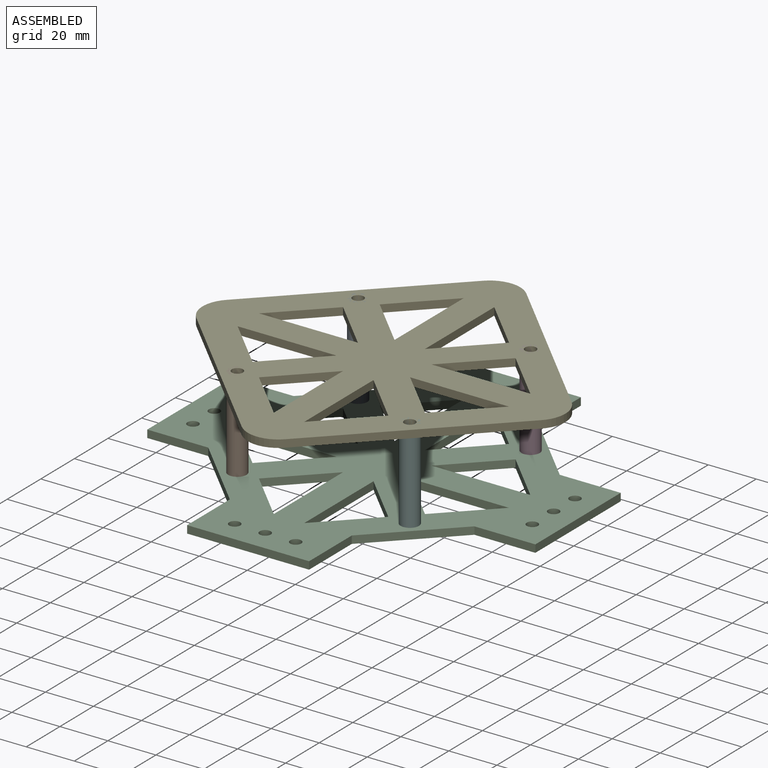
[diagram: assembled view]
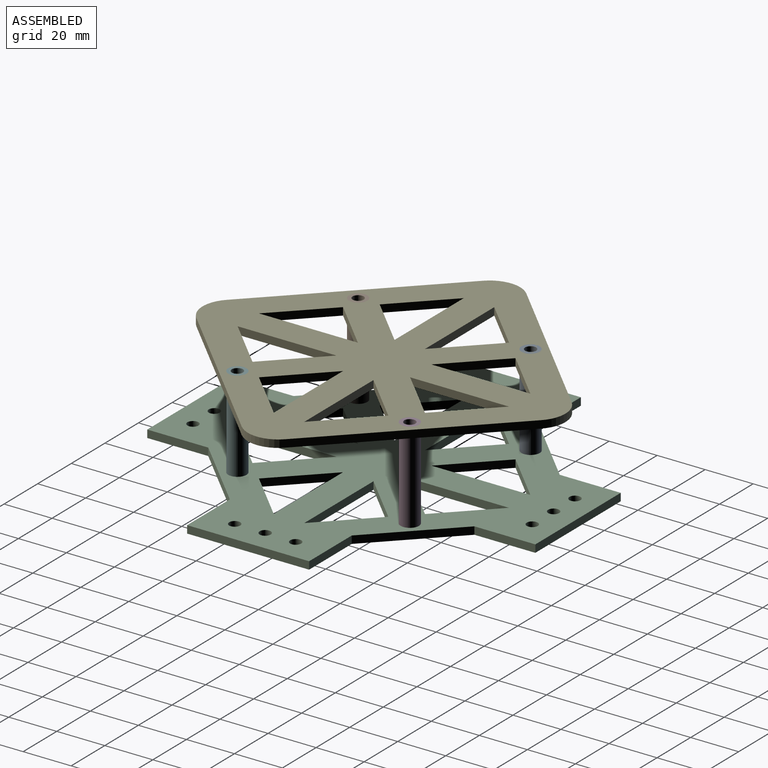
[diagram: assembled view, second angle]
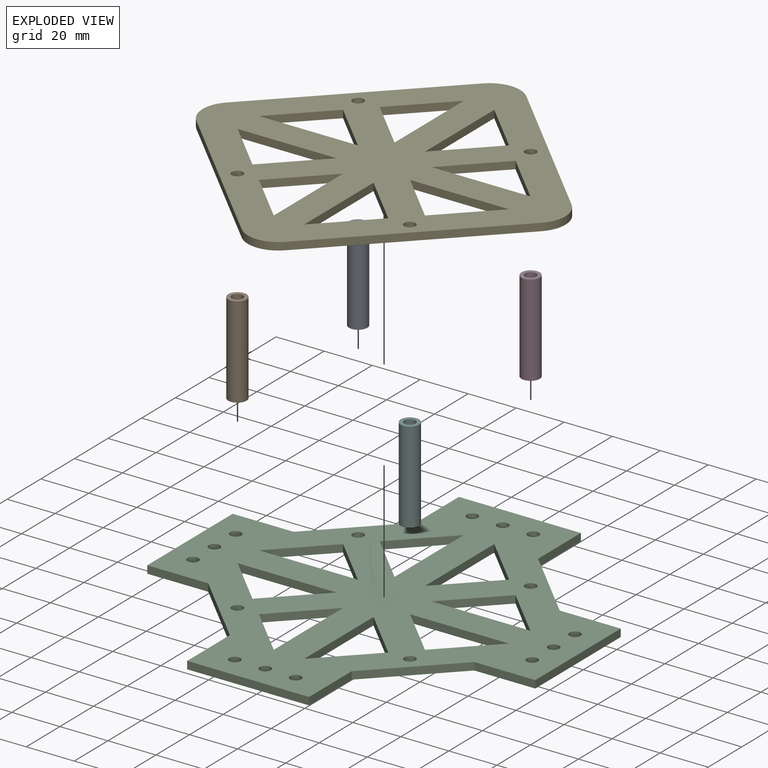
[diagram: exploded view]
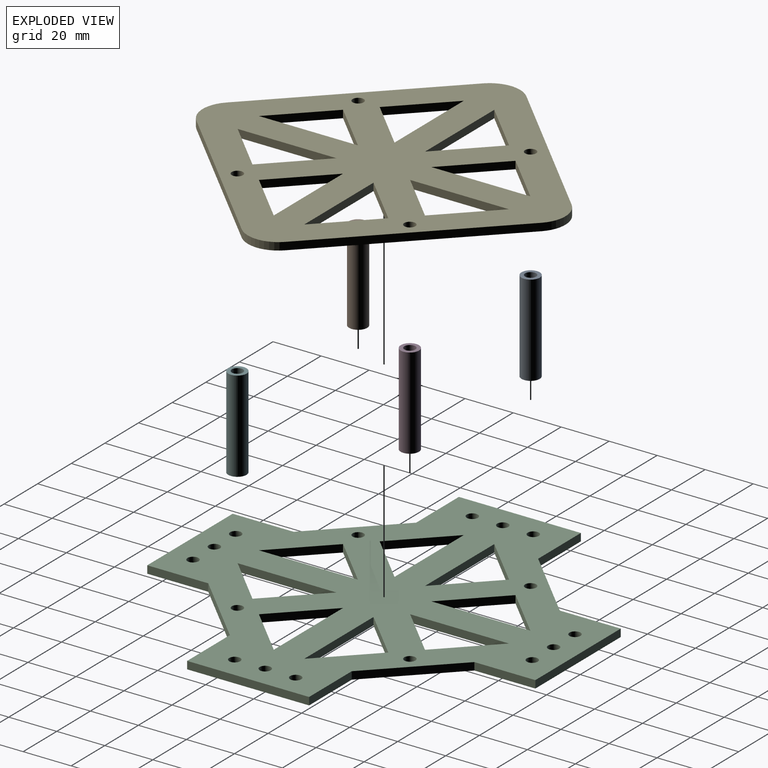
[diagram: exploded view, second angle]
ASSEMBLY  parts=6 mates=5
PART A: 4 faces, bbox 7.6x7.6x38.1 mm
  f0: cylinder r=3.81mm len=38.1mm, axis (0,0,-1), area 912.1mm2, adj f1,f2
  f1: plane 7.62x7.62mm, normal (0,0,1), area 28.8mm2, adj f0,f3
  f2: plane 7.62x7.62mm, normal (0,0,-1), area 28.8mm2, adj f0,f3
  f3: cylinder r=2.31mm len=38.1mm, axis (0,0,1), area 553.3mm2, adj f1,f2
PART B: same geometry as A
PART C: 58 faces, bbox 150.2x150.2x3.2 mm
  f0: plane 29.12x3.18mm, normal (0,-1,0), area 92.5mm2, adj f1,f55,f56,f57
  f1: plane 29.12x3.18mm, normal (-1,0,0), area 92.5mm2, adj f0,f55,f56,f57
  f2: plane 29.12x3.18mm, normal (0,-1,0), area 92.5mm2, adj f3,f31,f56,f57
  f3: plane 29.12x3.18mm, normal (-1,0,0), area 92.5mm2, adj f2,f31,f56,f57
  f4: plane 17.96x17.96mm, normal (-0.71,-0.71,0), area 80.6mm2, adj f5,f32,f56,f57
  f5: plane 42.46x3.18mm, normal (-1,0,0), area 134.8mm2, adj f4,f6,f56,f57
  f6: plane 17.96x17.96mm, normal (-0.71,0.71,0), area 80.6mm2, adj f5,f7,f56,f57
  f7: plane 35.92x35.92mm, normal (-0.71,-0.71,0), area 161.3mm2, adj f6,f8,f56,f57
  f8: plane 17.96x17.96mm, normal (0.71,-0.71,0), area 80.6mm2, adj f7,f9,f56,f57
  f9: plane 42.46x3.18mm, normal (0,-1,0), area 134.8mm2, adj f8,f10,f56,f57
  f10: plane 17.96x17.96mm, normal (-0.71,-0.71,0), area 80.6mm2, adj f9,f11,f56,f57
  f11: plane 35.92x35.92mm, normal (0.71,-0.71,0), area 161.3mm2, adj f10,f12,f56,f57
  f12: plane 17.96x17.96mm, normal (0.71,0.71,0), area 80.6mm2, adj f11,f13,f56,f57
  f13: plane 42.46x3.18mm, normal (1,0,0), area 134.8mm2, adj f12,f14,f56,f57
  f14: plane 17.96x17.96mm, normal (0.71,-0.71,0), area 80.6mm2, adj f13,f15,f56,f57
  f15: plane 35.92x35.92mm, normal (0.71,0.71,0), area 161.3mm2, adj f14,f16,f56,f57
  f16: plane 17.96x17.96mm, normal (-0.71,0.71,0), area 80.6mm2, adj f15,f17,f56,f57
  f17: plane 42.46x3.18mm, normal (0,1,0), area 134.8mm2, adj f16,f18,f56,f57
  f18: plane 17.96x17.96mm, normal (0.71,0.71,0), area 80.6mm2, adj f17,f32,f56,f57
  f19: plane 29.12x3.18mm, normal (-1,0,0), area 92.5mm2, adj f20,f49,f56,f57
  f20: plane 29.12x3.18mm, normal (0,1,0), area 92.5mm2, adj f19,f49,f56,f57
  f21: plane 29.12x29.12mm, normal (-0.71,0.71,0), area 130.8mm2, adj f22,f50,f56,f57
  f22: plane 29.12x3.18mm, normal (1,0,0), area 92.5mm2, adj f21,f50,f56,f57
  f23: plane 29.12x29.12mm, normal (-0.71,-0.71,0), area 130.8mm2, adj f24,f51,f56,f57
  f24: plane 29.12x3.18mm, normal (0,1,0), area 92.5mm2, adj f23,f51,f56,f57
  f25: plane 29.12x3.18mm, normal (-1,0,0), area 92.5mm2, adj f26,f52,f56,f57
  f26: plane 29.12x3.18mm, normal (0,1,0), area 92.5mm2, adj f25,f52,f56,f57
  f27: plane 29.12x3.18mm, normal (1,0,0), area 92.5mm2, adj f28,f53,f56,f57
  f28: plane 29.12x3.18mm, normal (0,-1,0), area 92.5mm2, adj f27,f53,f56,f57
  f29: plane 29.12x3.18mm, normal (0,1,0), area 92.5mm2, adj f30,f54,f56,f57
  f30: plane 29.12x3.18mm, normal (1,0,0), area 92.5mm2, adj f29,f54,f56,f57
  f31: plane 29.12x29.12mm, normal (0.71,0.71,0), area 130.8mm2, adj f2,f3,f56,f57
  f32: plane 35.92x35.92mm, normal (-0.71,0.71,0), area 161.3mm2, adj f4,f18,f56,f57
  f33: cylinder r=2.31mm len=4.62mm, axis (0,0,-1), area 46.1mm2, adj f56,f57
  f34: cylinder r=2.31mm len=4.62mm, axis (0,0,-1), area 46.1mm2, adj f56,f57
  f35: cylinder r=2.31mm len=4.62mm, axis (0,0,-1), area 46.1mm2, adj f56,f57
  f36: cylinder r=2.31mm len=4.62mm, axis (0,0,-1), area 46.1mm2, adj f56,f57
  f37: cylinder r=2.31mm len=4.62mm, axis (0,0,-1), area 46.1mm2, adj f56,f57
  f38: cylinder r=2.31mm len=4.62mm, axis (0,0,-1), area 46.1mm2, adj f56,f57
  f39: cylinder r=2.31mm len=4.62mm, axis (0,0,-1), area 46.1mm2, adj f56,f57
  f40: cylinder r=2.31mm len=4.62mm, axis (0,0,-1), area 46.1mm2, adj f56,f57
  f41: cylinder r=2.31mm len=4.62mm, axis (0,0,-1), area 46.1mm2, adj f56,f57
  f42: cylinder r=2.31mm len=4.62mm, axis (0,0,-1), area 46.1mm2, adj f56,f57
  f43: cylinder r=2.31mm len=4.62mm, axis (0,0,-1), area 46.1mm2, adj f56,f57
  f44: cylinder r=2.31mm len=4.62mm, axis (0,0,-1), area 46.1mm2, adj f56,f57
  f45: cylinder r=2.31mm len=4.62mm, axis (0,0,-1), area 46.1mm2, adj f56,f57
  f46: cylinder r=2.31mm len=4.62mm, axis (0,0,-1), area 46.1mm2, adj f56,f57
  f47: cylinder r=2.31mm len=4.62mm, axis (0,0,-1), area 46.1mm2, adj f56,f57
  f48: cylinder r=2.31mm len=4.62mm, axis (0,0,-1), area 46.1mm2, adj f56,f57
  f49: plane 29.12x29.12mm, normal (0.71,-0.71,0), area 130.8mm2, adj f19,f20,f56,f57
  f50: plane 29.12x3.18mm, normal (0,-1,0), area 92.5mm2, adj f21,f22,f56,f57
  f51: plane 29.12x3.18mm, normal (1,0,0), area 92.5mm2, adj f23,f24,f56,f57
  f52: plane 29.12x29.12mm, normal (0.71,-0.71,0), area 130.8mm2, adj f25,f26,f56,f57
  f53: plane 29.12x29.12mm, normal (-0.71,0.71,0), area 130.8mm2, adj f27,f28,f56,f57
  f54: plane 29.12x29.12mm, normal (-0.71,-0.71,0), area 130.8mm2, adj f29,f30,f56,f57
  f55: plane 29.12x29.12mm, normal (0.71,0.71,0), area 130.8mm2, adj f0,f1,f56,f57
  f56: plane 150.22x150.22mm, normal (0,0,1), area 11984.7mm2, adj f0,f1,f2,f3,f4,f5,f6,f7
  f57: plane 150.22x150.22mm, normal (0,0,-1), area 11984.7mm2, adj f0,f1,f2,f3,f4,f5,f6,f7
PART D: same geometry as A
PART E: 38 faces, bbox 114.3x114.3x3.2 mm
  f0: plane 29.12x3.18mm, normal (0,-1,0), area 92.5mm2, adj f1,f35,f36,f37
  f1: plane 29.12x3.18mm, normal (-1,0,0), area 92.5mm2, adj f0,f35,f36,f37
  f2: plane 29.12x3.18mm, normal (0,-1,0), area 92.5mm2, adj f3,f23,f36,f37
  f3: plane 29.12x3.18mm, normal (-1,0,0), area 92.5mm2, adj f2,f23,f36,f37
  f4: plane 88.9x3.18mm, normal (1,0,0), area 282.3mm2, adj f5,f28,f36,f37
  f5: cylinder r=12.7mm len=12.7mm, axis (0,0,-1), area 63.3mm2, adj f4,f6,f36,f37
  f6: plane 88.9x3.18mm, normal (0,1,0), area 282.3mm2, adj f5,f7,f36,f37
  f7: cylinder r=12.7mm len=12.7mm, axis (0,0,-1), area 63.3mm2, adj f6,f8,f36,f37
  f8: plane 88.9x3.18mm, normal (-1,0,0), area 282.3mm2, adj f7,f9,f36,f37
  f9: cylinder r=12.7mm len=12.7mm, axis (0,0,-1), area 63.3mm2, adj f8,f10,f36,f37
  f10: plane 88.9x3.18mm, normal (0,-1,0), area 282.3mm2, adj f9,f28,f36,f37
  f11: plane 29.12x3.18mm, normal (-1,0,0), area 92.5mm2, adj f12,f29,f36,f37
  f12: plane 29.12x3.18mm, normal (0,1,0), area 92.5mm2, adj f11,f29,f36,f37
  f13: plane 29.12x29.12mm, normal (-0.71,0.71,0), area 130.8mm2, adj f14,f30,f36,f37
  f14: plane 29.12x3.18mm, normal (1,0,0), area 92.5mm2, adj f13,f30,f36,f37
  f15: plane 29.12x29.12mm, normal (-0.71,-0.71,0), area 130.8mm2, adj f16,f31,f36,f37
  f16: plane 29.12x3.18mm, normal (0,1,0), area 92.5mm2, adj f15,f31,f36,f37
  f17: plane 29.12x3.18mm, normal (-1,0,0), area 92.5mm2, adj f18,f32,f36,f37
  f18: plane 29.12x3.18mm, normal (0,1,0), area 92.5mm2, adj f17,f32,f36,f37
  f19: plane 29.12x3.18mm, normal (1,0,0), area 92.5mm2, adj f20,f33,f36,f37
  f20: plane 29.12x3.18mm, normal (0,-1,0), area 92.5mm2, adj f19,f33,f36,f37
  f21: plane 29.12x3.18mm, normal (0,1,0), area 92.5mm2, adj f22,f34,f36,f37
  f22: plane 29.12x3.18mm, normal (1,0,0), area 92.5mm2, adj f21,f34,f36,f37
  f23: plane 29.12x29.12mm, normal (0.71,0.71,0), area 130.8mm2, adj f2,f3,f36,f37
  f24: cylinder r=2.31mm len=4.62mm, axis (0,0,-1), area 46.1mm2, adj f36,f37
  f25: cylinder r=2.31mm len=4.62mm, axis (0,0,-1), area 46.1mm2, adj f36,f37
  f26: cylinder r=2.31mm len=4.62mm, axis (0,0,-1), area 46.1mm2, adj f36,f37
  f27: cylinder r=2.31mm len=4.62mm, axis (0,0,-1), area 46.1mm2, adj f36,f37
  f28: cylinder r=12.7mm len=12.7mm, axis (0,0,-1), area 63.3mm2, adj f4,f10,f36,f37
  f29: plane 29.12x29.12mm, normal (0.71,-0.71,0), area 130.8mm2, adj f11,f12,f36,f37
  f30: plane 29.12x3.18mm, normal (0,-1,0), area 92.5mm2, adj f13,f14,f36,f37
  f31: plane 29.12x3.18mm, normal (1,0,0), area 92.5mm2, adj f15,f16,f36,f37
  f32: plane 29.12x29.12mm, normal (0.71,-0.71,0), area 130.8mm2, adj f17,f18,f36,f37
  f33: plane 29.12x29.12mm, normal (-0.71,0.71,0), area 130.8mm2, adj f19,f20,f36,f37
  f34: plane 29.12x29.12mm, normal (-0.71,-0.71,0), area 130.8mm2, adj f21,f22,f36,f37
  f35: plane 29.12x29.12mm, normal (0.71,0.71,0), area 130.8mm2, adj f0,f1,f36,f37
  f36: plane 114.3x114.3mm, normal (0,0,1), area 9467.1mm2, adj f0,f1,f2,f3,f4,f5,f6,f7
  f37: plane 114.3x114.3mm, normal (0,0,-1), area 9467.1mm2, adj f0,f1,f2,f3,f4,f5,f6,f7
PART F: same geometry as A
PLACE A rot(axis=(0.92,0.38,0),180deg) t=(-25.76,62.43,36.9)mm
PLACE B rot(axis=(0.92,0.38,0),180deg) t=(-25.76,-9.41,36.9)mm
PLACE C rot(axis=(0,0,1),45deg) t=(14.34,-13.2,-4.38)mm
PLACE D rot(axis=(0.92,0.38,0),180deg) t=(46.08,62.43,36.9)mm
PLACE E rot(axis=(0,0,1),45deg) t=(14.34,-13.2,33.72)mm
PLACE F rot(axis=(0.92,0.38,0),180deg) t=(46.08,-9.41,36.9)mm
MATE fastened B.f0 <-> C.f39  axis (0,0,-1) through (-37.14,-38.48,-1.2)mm
MATE fastened F.f0 <-> C.f41  axis (0,0,-1) through (34.7,-38.48,-1.2)mm
MATE fastened A.f0 <-> C.f42  axis (0,0,-1) through (-37.14,33.36,-1.2)mm
MATE fastened E.f24 <-> A.f0  axis (0,0,1) through (-37.14,33.36,36.9)mm
MATE fastened D.f0 <-> C.f40  axis (0,0,1) through (34.7,33.36,-1.2)mm
